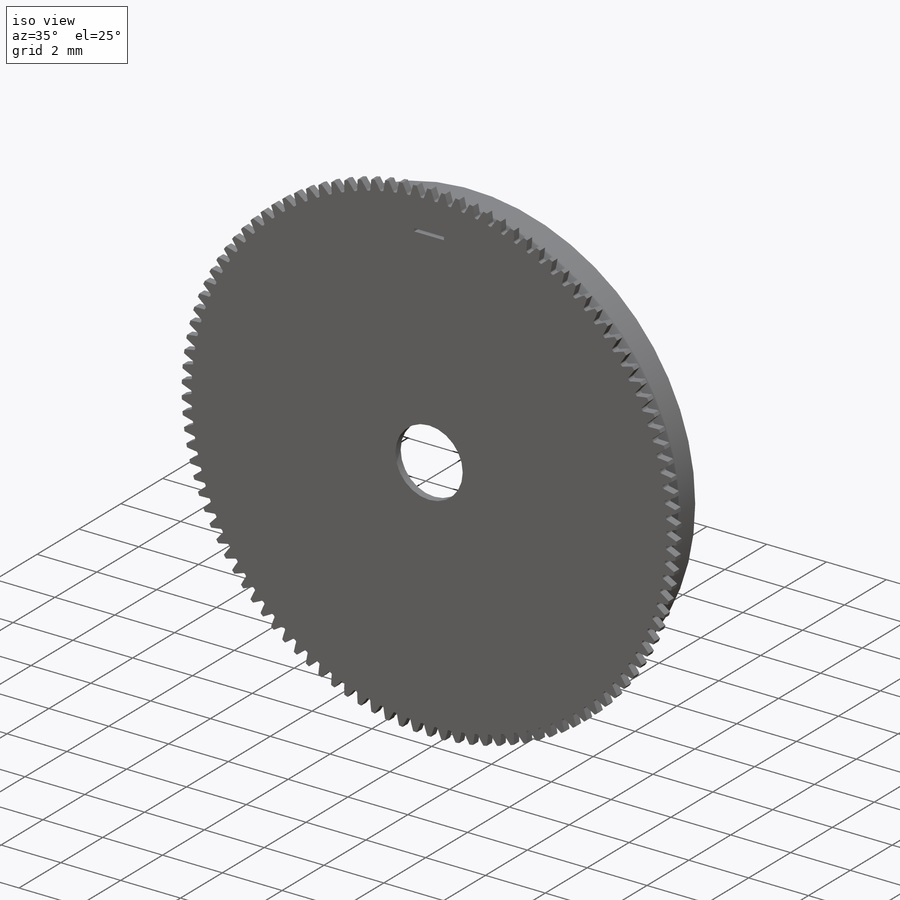
[diagram: iso view]
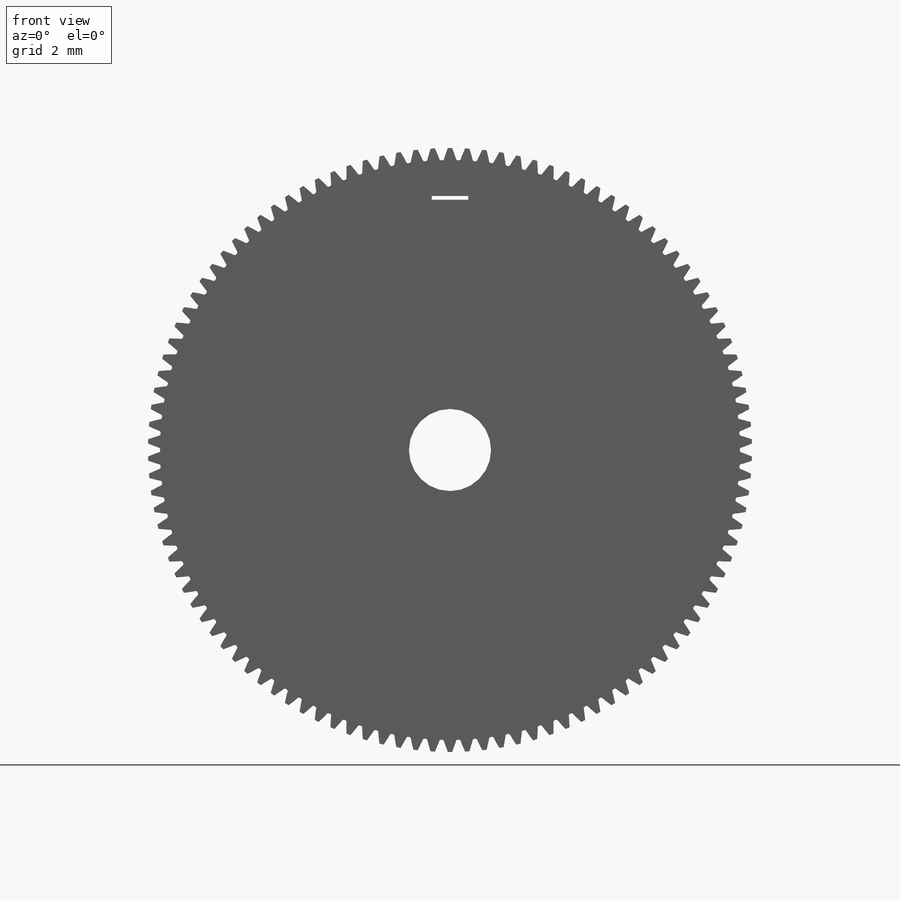
[diagram: front view]
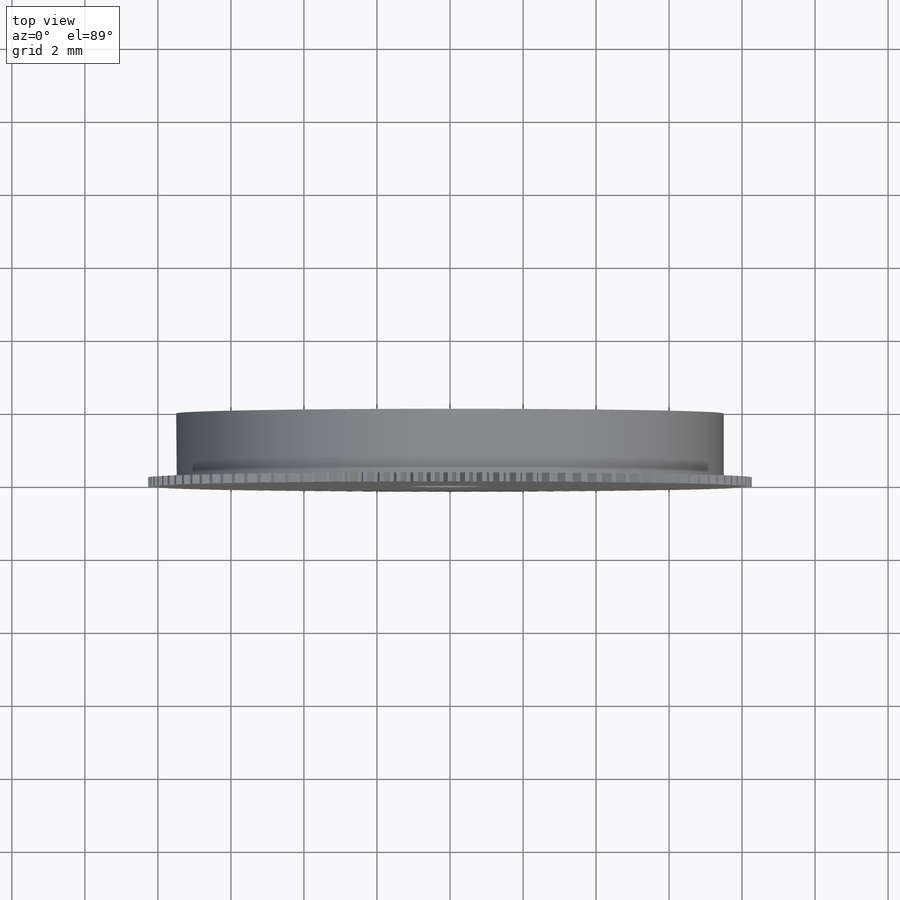
[diagram: top view]
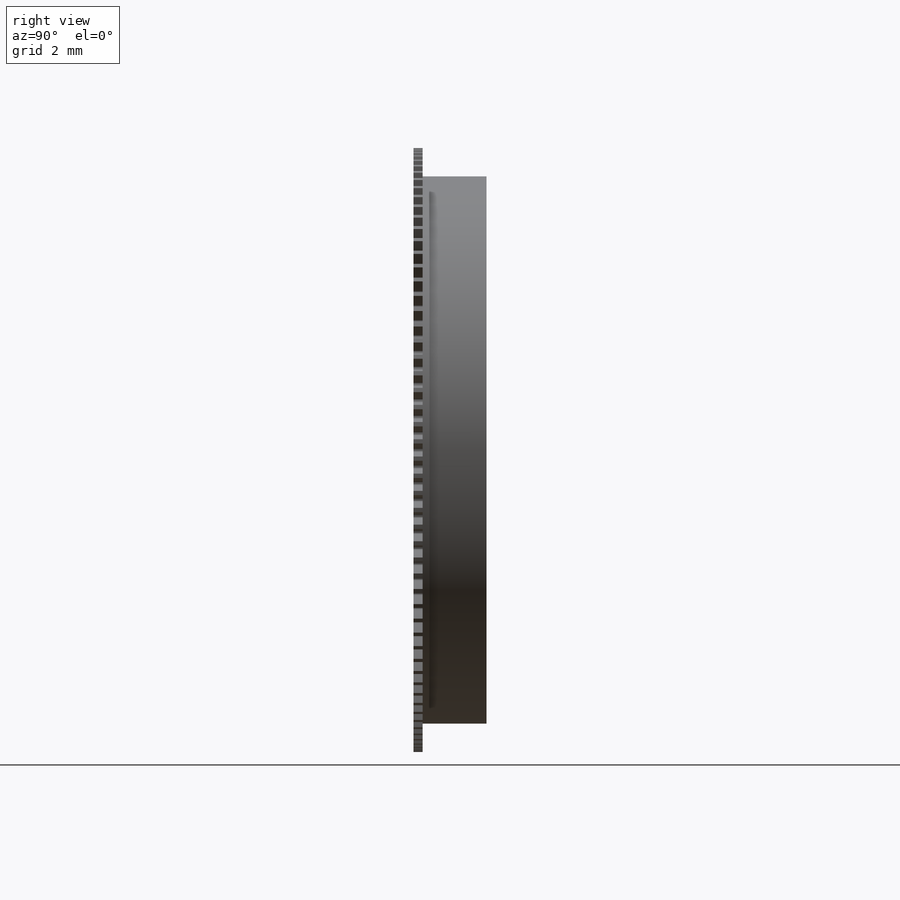
[diagram: right view]
SOLIDWORKS PART (.sldprt)
format: sldprt  version: not decoded by parser v0  size: 1,038,336 bytes
history: native  units: mm
features: sketch x6, plane x3, cut_extrude x3, material x1, revolve x1, pattern_circular x1 (+8 scaffold rows collapsed)
feature tree (23):
  scaffold x8  (default folders/planes/origin — collapsed)
  material  "Material <sin especificar>"
  plane  "Alzado"
  plane  "Planta"
  plane  "Vista lateral"
  sketch  "SketchRevolveEngranajeTambor (16.5)"
  revolve  "EngranajeTambor (16.5)"  Angle=360deg
  sketch  "SketchToothEngranajeTambor (16.5)"
  cut_extrude  "ToothExtrudeCutEngranajeTambor (16.5)"  Depth=0.125mm
  pattern_circular  "PatternEngranajeTambor (16.5)"  Count=110 Angle=3.272727deg
  sketch  "AuxiliarySketchEngranajeTambor (16.5)"  dims[PitchDiameter=16.25mm BaseDiameter=~15.270005mm FormDiameter=~15.961889mm MajorDiameter=~16.545455mm MinorDiameter=~15.880682mm]
  sketch  "Croquis5"  dims[c1.D1=14.5mm c2.D1=1.75mm c2.D5=0.25mm c2.D6=1.0mm c2.D7=5.0mm]
  sketch  "Croquis6"  dims[D1=2.25mm]
  cut_extrude  "Cortar-Extruir4"  [1 undecoded]
  sketch  "Croquis7"  dims[c1.D1=13.75mm c1.D2=7.0mm c1.D3=~2.657536mm c2.D2=1.0mm c2.D3=0.1mm]
  cut_extrude  "Cortar-Extruir5"  [1 undecoded]
decode coverage: 7 of 11 modeling features carry decoded parameters
note: ~ marks probable driven/reference dimensions
note: 2 parameter values undecoded
note: suppression state not decoded; provenance and decode notes live in map.json
